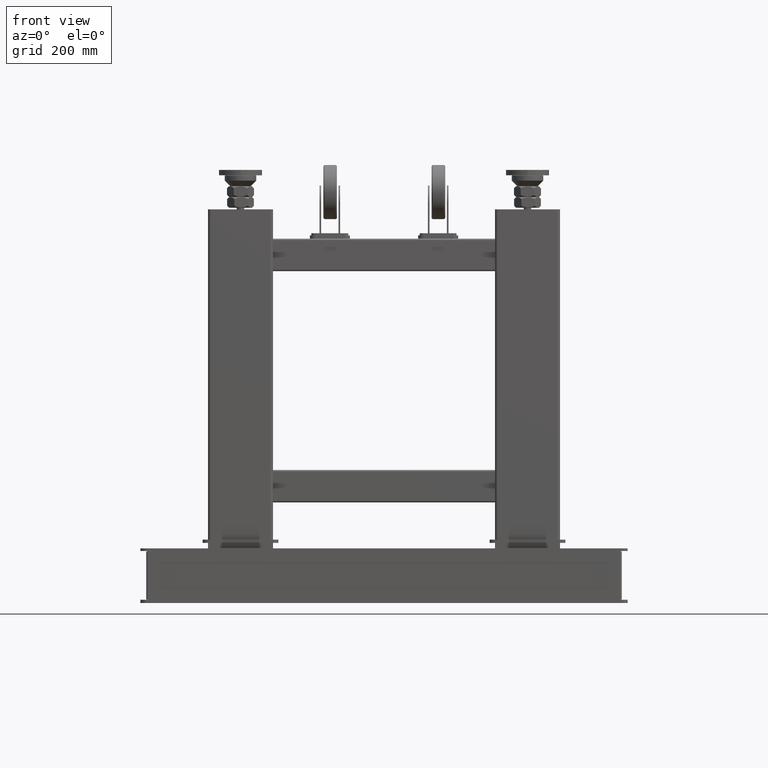
[diagram: clean part render]
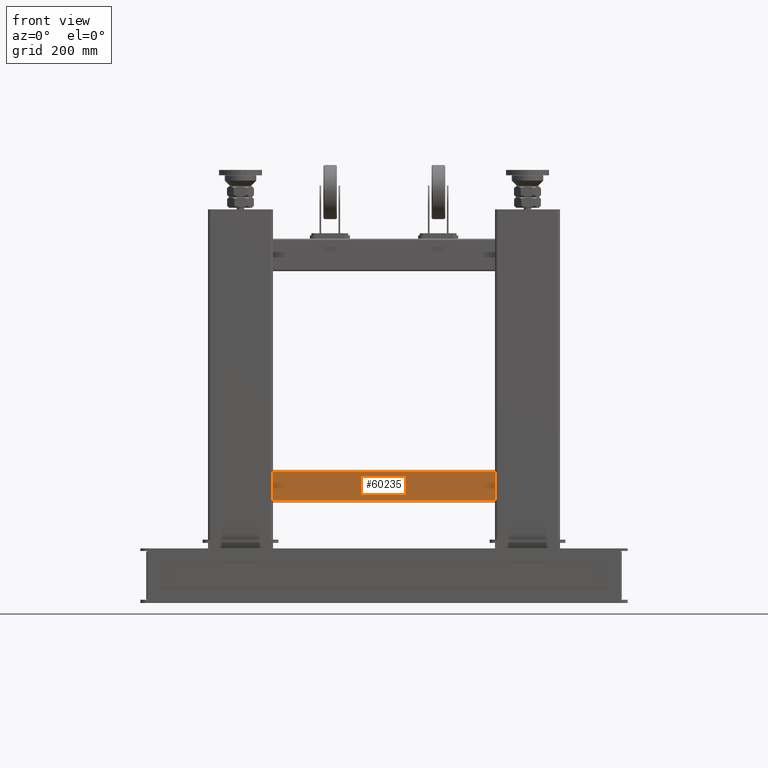
[diagram: same view with one face highlighted and labeled with its STEP entity id]
A machine part, front view. The second image highlights one B-rep face of the part: STEP entity #60235.
In plain terms, the highlighted planar face has unit normal (-0, 1, 0).
Its self-contained STEP definition (entity closure, byte-faithful):
#4611 = EDGE_CURVE ( 'NONE', #100295, #69222, #27622, .T. ) ;
#8928 = CARTESIAN_POINT ( 'NONE',  ( -547.3579775280899185, -22.07558052434459128, -273.5000000000000000 ) ) ;
#14790 = VECTOR ( 'NONE', #74604, 1000.000000000000000 ) ;
#16311 = CARTESIAN_POINT ( 'NONE',  ( -547.3579775280899185, -22.07558052434459128, -219.5000000000000284 ) ) ;
#27622 = LINE ( 'NONE', #85544, #68722 ) ;
#35075 = CARTESIAN_POINT ( 'NONE',  ( -957.3579775280899185, -22.07558052434459128, -219.5000000000001421 ) ) ;
#35174 = LINE ( 'NONE', #123659, #14790 ) ;
#37043 = AXIS2_PLACEMENT_3D ( 'NONE', #101092, #60382, #110050 ) ;
#38626 = ORIENTED_EDGE ( 'NONE', *, *, #4611, .T. ) ;
#39759 = EDGE_LOOP ( 'NONE', ( #125302, #38626, #98750, #100089 ) ) ;
#42928 = VECTOR ( 'NONE', #96947, 1000.000000000000000 ) ;
#51444 = PLANE ( 'NONE',  #37043 ) ;
#53311 = FACE_OUTER_BOUND ( 'NONE', #39759, .T. ) ;
#60235 = ADVANCED_FACE ( 'NONE', ( #53311 ), #51444, .F. ) ;
#60382 = DIRECTION ( 'NONE',  ( -0.000000000000000000, 1.000000000000000000, 0.000000000000000000 ) ) ;
#64915 = DIRECTION ( 'NONE',  ( 1.284980352575414178E-16, 0.000000000000000000, -1.000000000000000000 ) ) ;
#67625 = LINE ( 'NONE', #8928, #42928 ) ;
#68722 = VECTOR ( 'NONE', #114322, 1000.000000000000000 ) ;
#69222 = VERTEX_POINT ( 'NONE', #103029 ) ;
#74604 = DIRECTION ( 'NONE',  ( 1.000000000000000000, 0.000000000000000000, 1.284980352575414178E-16 ) ) ;
#84702 = VECTOR ( 'NONE', #64915, 1000.000000000000000 ) ;
#85544 = CARTESIAN_POINT ( 'NONE',  ( -957.3579775280899185, -22.07558052434459128, -219.5000000000001421 ) ) ;
#87803 = EDGE_CURVE ( 'NONE', #113931, #69222, #67625, .T. ) ;
#91270 = EDGE_CURVE ( 'NONE', #116454, #113931, #113397, .T. ) ;
#96947 = DIRECTION ( 'NONE',  ( -1.000000000000000000, -0.000000000000000000, -1.284980352575414178E-16 ) ) ;
#98750 = ORIENTED_EDGE ( 'NONE', *, *, #87803, .F. ) ;
#100089 = ORIENTED_EDGE ( 'NONE', *, *, #91270, .F. ) ;
#100295 = VERTEX_POINT ( 'NONE', #35075 ) ;
#101092 = CARTESIAN_POINT ( 'NONE',  ( -547.3579775280899185, -22.07558052434459128, -219.5000000000000284 ) ) ;
#103029 = CARTESIAN_POINT ( 'NONE',  ( -957.3579775280899185, -22.07558052434459128, -273.5000000000001137 ) ) ;
#110050 = DIRECTION ( 'NONE',  ( 1.000000000000000000, 0.000000000000000000, 1.284980352575414178E-16 ) ) ;
#110058 = CARTESIAN_POINT ( 'NONE',  ( -547.3579775280899185, -22.07558052434459128, -273.5000000000000000 ) ) ;
#110384 = EDGE_CURVE ( 'NONE', #100295, #116454, #35174, .T. ) ;
#113397 = LINE ( 'NONE', #121037, #84702 ) ;
#113931 = VERTEX_POINT ( 'NONE', #110058 ) ;
#114322 = DIRECTION ( 'NONE',  ( 1.284980352575414178E-16, 0.000000000000000000, -1.000000000000000000 ) ) ;
#116454 = VERTEX_POINT ( 'NONE', #16311 ) ;
#121037 = CARTESIAN_POINT ( 'NONE',  ( -547.3579775280899185, -22.07558052434459128, -219.5000000000000284 ) ) ;
#123659 = CARTESIAN_POINT ( 'NONE',  ( -547.3579775280899185, -22.07558052434459128, -219.5000000000000284 ) ) ;
#125302 = ORIENTED_EDGE ( 'NONE', *, *, #110384, .F. ) ;